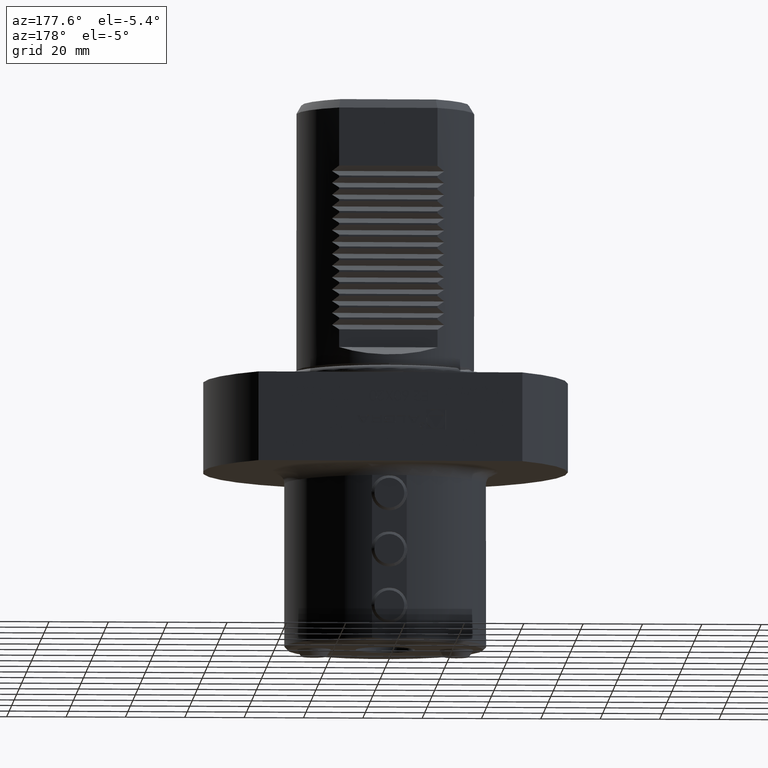
[diagram: clean part render]
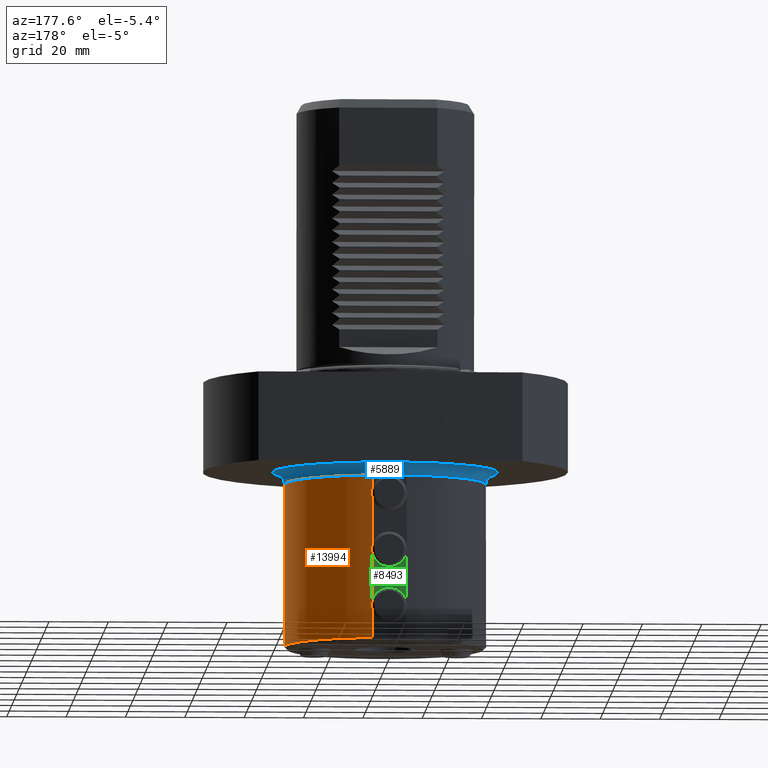
[diagram: same view with three faces highlighted in distinct colors, each labeled with its STEP entity id]
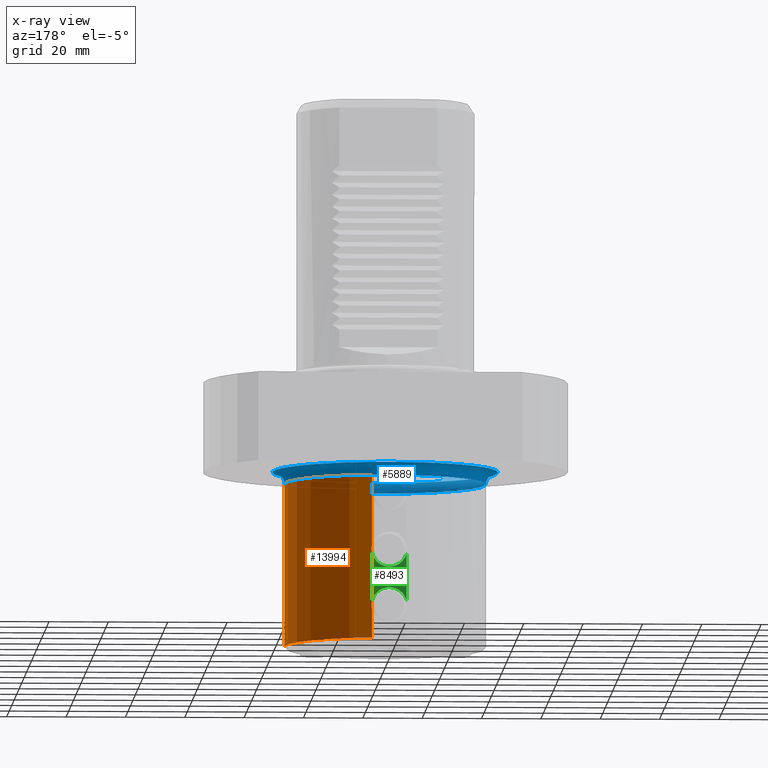
[diagram: x-ray of the same camera — body ghosted, the three highlighted faces saturated]
A machine part, auxiliary view with three faces highlighted in distinct colors.
The next image is the same camera in x-ray (body ghosted, the three faces saturated) — at least one of them is partly hidden behind the body in this view.
Their STEP definitions:

[orange] entity #13994 — the highlighted cylindrical surface (partial cylindrical patch) has radius 34 mm, axis along (0, 0, 1).
#90 = VECTOR ( 'NONE', #1124, 1000.000000000000000 ) ;
#97 = VERTEX_POINT ( 'NONE', #10227 ) ;
#319 = ORIENTED_EDGE ( 'NONE', *, *, #3936, .F. ) ;
#345 = EDGE_CURVE ( 'NONE', #11357, #4293, #9616, .T. ) ;
#447 = EDGE_CURVE ( 'NONE', #4893, #11664, #2257, .T. ) ;
#487 = AXIS2_PLACEMENT_3D ( 'NONE', #6621, #555, #14303 ) ;
#527 = CARTESIAN_POINT ( 'NONE',  ( 5.984092836332388643, 33.46926450283819321, -39.49593991136412541 ) ) ;
#555 = DIRECTION ( 'NONE',  ( -2.220446049250309876E-16, -9.860761315262649757E-32, -1.000000000000000000 ) ) ;
#738 = CIRCLE ( 'NONE', #487, 34.00000000000000000 ) ;
#804 = ORIENTED_EDGE ( 'NONE', *, *, #345, .T. ) ;
#824 = CARTESIAN_POINT ( 'NONE',  ( 5.984159321200329451, 33.46925302683403203, -40.50447366876528577 ) ) ;
#859 = ORIENTED_EDGE ( 'NONE', *, *, #4214, .F. ) ;
#1124 = DIRECTION ( 'NONE',  ( -2.220446049250309876E-16, -9.860761315262649757E-32, -1.000000000000000000 ) ) ;
#1358 = ORIENTED_EDGE ( 'NONE', *, *, #7415, .F. ) ;
#1601 = EDGE_CURVE ( 'NONE', #3600, #4757, #11387, .T. ) ;
#1760 = B_SPLINE_CURVE_WITH_KNOTS ( 'NONE', 3,
 ( #8619, #14278, #6375, #527, #4042, #12149, #824, #3971, #11117, #13224 ),
 .UNSPECIFIED., .F., .F.,
 ( 4, 2, 2, 2, 4 ),
 ( 0.007890176800251690048, 0.008644438410527741090, 0.009398700020803790398, 0.01015296163107983970, 0.01090722324135589075 ),
 .UNSPECIFIED. ) ;
#1845 = CARTESIAN_POINT ( 'NONE',  ( 5.809475019311099331, 33.50000000000000000, -90.00000000000001421 ) ) ;
#1869 = DIRECTION ( 'NONE',  ( -2.220446049250309876E-16, -9.860761315262649757E-32, -1.000000000000000000 ) ) ;
#1975 = DIRECTION ( 'NONE',  ( 2.220446049250309876E-16, 9.860761315262649757E-32, 1.000000000000000000 ) ) ;
#2257 = LINE ( 'NONE', #11428, #90 ) ;
#2298 = VERTEX_POINT ( 'NONE', #5412 ) ;
#2326 = CARTESIAN_POINT ( 'NONE',  ( 5.999960586885474179, 33.46640812751524408, -59.25256972741222938 ) ) ;
#2426 = DIRECTION ( 'NONE',  ( -2.220446049250309876E-16, -9.860761315262649757E-32, -1.000000000000000000 ) ) ;
#2920 = DIRECTION ( 'NONE',  ( 2.220446049250309876E-16, 9.860761315262649757E-32, 1.000000000000000000 ) ) ;
#3388 = EDGE_CURVE ( 'NONE', #11664, #3600, #1760, .T. ) ;
#3600 = VERTEX_POINT ( 'NONE', #10226 ) ;
#3611 = CARTESIAN_POINT ( 'NONE',  ( 6.000078606252715829, 33.46638696849687733, -58.49767464295964459 ) ) ;
#3789 = VERTEX_POINT ( 'NONE', #5853 ) ;
#3819 = CARTESIAN_POINT ( 'NONE',  ( 5.809475019311101995, 33.50000000000000000, -79.49999999999997158 ) ) ;
#3936 = EDGE_CURVE ( 'NONE', #2298, #97, #5220, .T. ) ;
#3971 = CARTESIAN_POINT ( 'NONE',  ( 5.920020685492167978, 33.48065734180099184, -41.00896558282784099 ) ) ;
#3975 = CARTESIAN_POINT ( 'NONE',  ( 6.000078606252705171, 33.46638696849687022, -77.49767464295968011 ) ) ;
#4042 = CARTESIAN_POINT ( 'NONE',  ( 5.999941852444139911, 33.46641148630608598, -39.74679394902427987 ) ) ;
#4043 = CYLINDRICAL_SURFACE ( 'NONE', #9311, 34.00000000000000000 ) ;
#4046 = CARTESIAN_POINT ( 'NONE',  ( 5.809475019311105548, 33.50000000000000000, -76.50000000000002842 ) ) ;
#4214 = EDGE_CURVE ( 'NONE', #11542, #2298, #14828, .T. ) ;
#4293 = VERTEX_POINT ( 'NONE', #14514 ) ;
#4613 = CARTESIAN_POINT ( 'NONE',  ( 5.809475019311105548, 33.50000000000000000, -76.50000000000002842 ) ) ;
#4667 = LINE ( 'NONE', #13839, #7195 ) ;
#4700 = ORIENTED_EDGE ( 'NONE', *, *, #447, .F. ) ;
#4757 = VERTEX_POINT ( 'NONE', #9459 ) ;
#4893 = VERTEX_POINT ( 'NONE', #7974 ) ;
#5220 = LINE ( 'NONE', #1845, #9868 ) ;
#5222 = CARTESIAN_POINT ( 'NONE',  ( 5.999960586885462632, 33.46640812751524408, -78.25256972741222228 ) ) ;
#5412 = CARTESIAN_POINT ( 'NONE',  ( 5.809475019311101995, 33.50000000000000000, -79.49999999999997158 ) ) ;
#5581 = VECTOR ( 'NONE', #1869, 1000.000000000000000 ) ;
#5703 = CARTESIAN_POINT ( 'NONE',  ( 5.984154340608802691, 33.46925351560634709, -59.50343631601325711 ) ) ;
#5796 = EDGE_LOOP ( 'NONE', ( #4700, #8643, #804, #12129, #319, #859, #6872, #1358, #7144, #11513 ) ) ;
#5853 = CARTESIAN_POINT ( 'NONE',  ( 5.809475019311106436, 33.50000000000000000, -60.50000000000001421 ) ) ;
#6225 = CARTESIAN_POINT ( 'NONE',  ( 5.935085517526010435, 33.47821698353605058, -76.98648736769520440 ) ) ;
#6307 = CARTESIAN_POINT ( 'NONE',  ( 5.984154340608795586, 33.46925351560635420, -78.50343631601323580 ) ) ;
#6375 = CARTESIAN_POINT ( 'NONE',  ( 5.920791655831536104, 33.48052059934292402, -38.99617241767529663 ) ) ;
#6621 = CARTESIAN_POINT ( 'NONE',  ( -1.976196983832780220E-14, -8.776077570583750730E-30, -89.00000000000000000 ) ) ;
#6726 = DIRECTION ( 'NONE',  ( -2.220446049250309876E-16, -9.860761315262649757E-32, -1.000000000000000000 ) ) ;
#6872 = ORIENTED_EDGE ( 'NONE', *, *, #8981, .F. ) ;
#7144 = ORIENTED_EDGE ( 'NONE', *, *, #1601, .F. ) ;
#7195 = VECTOR ( 'NONE', #2426, 1000.000000000000000 ) ;
#7415 = EDGE_CURVE ( 'NONE', #4757, #3789, #13250, .T. ) ;
#7426 = VECTOR ( 'NONE', #6726, 1000.000000000000000 ) ;
#7915 = AXIS2_PLACEMENT_3D ( 'NONE', #11444, #1975, #14712 ) ;
#7974 = CARTESIAN_POINT ( 'NONE',  ( 5.809475019311109989, 33.50000000000001421, -34.00000000000000000 ) ) ;
#8230 = CARTESIAN_POINT ( 'NONE',  ( 5.809475019311110877, 33.50000000000001421, -38.49999999999993605 ) ) ;
#8619 = CARTESIAN_POINT ( 'NONE',  ( 5.809475019311110877, 33.50000000000001421, -38.49999999999993605 ) ) ;
#8643 = ORIENTED_EDGE ( 'NONE', *, *, #11878, .F. ) ;
#8981 = EDGE_CURVE ( 'NONE', #3789, #11542, #4667, .T. ) ;
#9116 = CIRCLE ( 'NONE', #7915, 34.00000000000000000 ) ;
#9215 = EDGE_CURVE ( 'NONE', #97, #4293, #738, .T. ) ;
#9311 = AXIS2_PLACEMENT_3D ( 'NONE', #13225, #2920, #10260 ) ;
#9459 = CARTESIAN_POINT ( 'NONE',  ( 5.809475019311106436, 33.50000000000000000, -57.49999999999997868 ) ) ;
#9510 = CARTESIAN_POINT ( 'NONE',  ( 5.872801385134568619, 33.48901812118464250, -79.25473803978987064 ) ) ;
#9597 = CARTESIAN_POINT ( 'NONE',  ( 5.920833905181742907, 33.48051313721767741, -79.00363198621725758 ) ) ;
#9616 = LINE ( 'NONE', #14225, #5581 ) ;
#9868 = VECTOR ( 'NONE', #12152, 1000.000000000000000 ) ;
#10226 = CARTESIAN_POINT ( 'NONE',  ( 5.809475019311110877, 33.50000000000001421, -41.50000000000006395 ) ) ;
#10227 = CARTESIAN_POINT ( 'NONE',  ( 5.809475019311099331, 33.50000000000000000, -89.00000000000000000 ) ) ;
#10260 = DIRECTION ( 'NONE',  ( -1.000000000000000000, 4.440892098500630106E-16, 4.081702296416016490E-16 ) ) ;
#10296 = CARTESIAN_POINT ( 'NONE',  ( 5.920833905181743795, 33.48051313721767031, -60.00363198621731442 ) ) ;
#10447 = CARTESIAN_POINT ( 'NONE',  ( 5.872801385134569507, 33.48901812118464250, -60.25473803978991327 ) ) ;
#11117 = CARTESIAN_POINT ( 'NONE',  ( 5.872302483441622201, 33.48910463930172199, -41.25667027773815221 ) ) ;
#11357 = VERTEX_POINT ( 'NONE', #12837 ) ;
#11387 = LINE ( 'NONE', #14725, #7426 ) ;
#11428 = CARTESIAN_POINT ( 'NONE',  ( 5.809475019311099331, 33.50000000000000000, -90.00000000000001421 ) ) ;
#11444 = CARTESIAN_POINT ( 'NONE',  ( -7.549516567451069208E-15, -3.352658847189300173E-30, -34.00000000000000000 ) ) ;
#11513 = ORIENTED_EDGE ( 'NONE', *, *, #3388, .F. ) ;
#11542 = VERTEX_POINT ( 'NONE', #4613 ) ;
#11585 = CARTESIAN_POINT ( 'NONE',  ( 5.809475019311106436, 33.50000000000000000, -57.49999999999997868 ) ) ;
#11664 = VERTEX_POINT ( 'NONE', #8230 ) ;
#11878 = EDGE_CURVE ( 'NONE', #11357, #4893, #9116, .T. ) ;
#12129 = ORIENTED_EDGE ( 'NONE', *, *, #9215, .F. ) ;
#12149 = CARTESIAN_POINT ( 'NONE',  ( 6.000057829400676113, 33.46639069346019113, -40.25044276952866795 ) ) ;
#12152 = DIRECTION ( 'NONE',  ( -2.220446049250309876E-16, -9.860761315262649757E-32, -1.000000000000000000 ) ) ;
#12837 = CARTESIAN_POINT ( 'NONE',  ( 34.00000000000000000, -1.093523401780109762E-14, -34.00000000000000000 ) ) ;
#12858 = CARTESIAN_POINT ( 'NONE',  ( 5.935085517526021981, 33.47821698353605768, -57.98648736769515466 ) ) ;
#13224 = CARTESIAN_POINT ( 'NONE',  ( 5.809475019311110877, 33.50000000000001421, -41.50000000000006395 ) ) ;
#13225 = CARTESIAN_POINT ( 'NONE',  ( -1.998401444325279879E-14, -8.874685183736380008E-30, -90.00000000000000000 ) ) ;
#13250 = B_SPLINE_CURVE_WITH_KNOTS ( 'NONE', 3,
 ( #11585, #12858, #3611, #2326, #5703, #10296, #10447, #13767 ),
 .UNSPECIFIED., .F., .F.,
 ( 4, 2, 2, 4 ),
 ( 0.01728829966039963778, 0.01879646839802815231, 0.01955055276684240090, 0.02030463713565664602 ),
 .UNSPECIFIED. ) ;
#13767 = CARTESIAN_POINT ( 'NONE',  ( 5.809475019311106436, 33.50000000000000000, -60.50000000000001421 ) ) ;
#13839 = CARTESIAN_POINT ( 'NONE',  ( 5.809475019311099331, 33.50000000000000000, -90.00000000000001421 ) ) ;
#13994 = ADVANCED_FACE ( 'Defeature completata1_7', ( #14342 ), #4043, .T. ) ;
#14225 = CARTESIAN_POINT ( 'NONE',  ( 34.00000000000000000, -1.093523401780109762E-14, -90.00000000000000000 ) ) ;
#14278 = CARTESIAN_POINT ( 'NONE',  ( 5.872925308351396367, 33.48899663077171596, -38.74574191276499135 ) ) ;
#14303 = DIRECTION ( 'NONE',  ( -1.000000000000000000, 4.440892098500630106E-16, 4.081702296416016490E-16 ) ) ;
#14342 = FACE_OUTER_BOUND ( 'NONE', #5796, .T. ) ;
#14514 = CARTESIAN_POINT ( 'NONE',  ( 34.00000000000000000, -1.926283225200309874E-14, -89.00000000000000000 ) ) ;
#14712 = DIRECTION ( 'NONE',  ( -1.000000000000000000, 4.440892098500630106E-16, 2.040851148208008245E-16 ) ) ;
#14725 = CARTESIAN_POINT ( 'NONE',  ( 5.809475019311099331, 33.50000000000000000, -90.00000000000001421 ) ) ;
#14828 = B_SPLINE_CURVE_WITH_KNOTS ( 'NONE', 3,
 ( #4046, #6225, #3975, #5222, #6307, #9597, #9510, #3819 ),
 .UNSPECIFIED., .F., .F.,
 ( 4, 2, 2, 4 ),
 ( 0.01728829966039968288, 0.01879646839802812108, 0.01955055276684236273, 0.02030463713565660439 ),
 .UNSPECIFIED. ) ;

[blue] entity #5889 — the highlighted toroidal blend (fillet) surface has major radius 38 mm and minor (blend) radius 4 mm.
#13 = AXIS2_PLACEMENT_3D ( 'NONE', #1752, #12266, #9771 ) ;
#463 = AXIS2_PLACEMENT_3D ( 'NONE', #4524, #9034, #1017 ) ;
#1017 = DIRECTION ( 'NONE',  ( -1.000000000000000000, 4.440892098500630106E-16, 2.040851148208008245E-16 ) ) ;
#1451 = AXIS2_PLACEMENT_3D ( 'NONE', #8862, #13689, #5469 ) ;
#1752 = CARTESIAN_POINT ( 'NONE',  ( -6.661338147750940031E-15, -2.958228394578790066E-30, -30.00000000000000000 ) ) ;
#1975 = DIRECTION ( 'NONE',  ( 2.220446049250309876E-16, 9.860761315262649757E-32, 1.000000000000000000 ) ) ;
#2770 = EDGE_CURVE ( 'NONE', #4893, #11095, #4998, .T. ) ;
#3041 = EDGE_CURVE ( 'NONE', #5727, #5727, #12482, .T. ) ;
#3065 = DIRECTION ( 'NONE',  ( -1.691768418476429906E-16, -1.220856162842039932E-31, -1.000000000000000000 ) ) ;
#4524 = CARTESIAN_POINT ( 'NONE',  ( -7.549516567451069208E-15, -3.352658847189300173E-30, -34.00000000000000000 ) ) ;
#4893 = VERTEX_POINT ( 'NONE', #7974 ) ;
#4998 = CIRCLE ( 'NONE', #463, 34.00000000000000000 ) ;
#5024 = TOROIDAL_SURFACE ( 'NONE', #12481, 38.00000000000000000, 4.000000000000000000 ) ;
#5469 = DIRECTION ( 'NONE',  ( -1.000000000000000000, 4.440892098500630106E-16, 2.040851148208008245E-16 ) ) ;
#5727 = VERTEX_POINT ( 'NONE', #13623 ) ;
#5889 = ADVANCED_FACE ( 'Defeature completata1_56', ( #13372, #11358 ), #5024, .F. ) ;
#6464 = EDGE_LOOP ( 'NONE', ( #14254 ) ) ;
#6541 = DIRECTION ( 'NONE',  ( 1.000000000000000000, -4.440892098500630106E-16, -1.691768418476429906E-16 ) ) ;
#7409 = ORIENTED_EDGE ( 'NONE', *, *, #12093, .T. ) ;
#7915 = AXIS2_PLACEMENT_3D ( 'NONE', #11444, #1975, #14712 ) ;
#7965 = ORIENTED_EDGE ( 'NONE', *, *, #2770, .T. ) ;
#7974 = CARTESIAN_POINT ( 'NONE',  ( 5.809475019311109989, 33.50000000000001421, -34.00000000000000000 ) ) ;
#8862 = CARTESIAN_POINT ( 'NONE',  ( -7.549516567451069208E-15, -3.352658847189300173E-30, -34.00000000000000000 ) ) ;
#9034 = DIRECTION ( 'NONE',  ( 2.220446049250309876E-16, 9.860761315262649757E-32, 1.000000000000000000 ) ) ;
#9054 = ORIENTED_EDGE ( 'NONE', *, *, #11878, .T. ) ;
#9116 = CIRCLE ( 'NONE', #7915, 34.00000000000000000 ) ;
#9771 = DIRECTION ( 'NONE',  ( -1.000000000000000000, 4.440892098500630106E-16, 1.826024711554533667E-16 ) ) ;
#9911 = CARTESIAN_POINT ( 'NONE',  ( -7.549516567451069208E-15, -3.352658847189300173E-30, -34.00000000000000000 ) ) ;
#10312 = CIRCLE ( 'NONE', #1451, 34.00000000000000000 ) ;
#10604 = CARTESIAN_POINT ( 'NONE',  ( -5.809475019311130417, 33.50000000000001421, -34.00000000000000000 ) ) ;
#11095 = VERTEX_POINT ( 'NONE', #10604 ) ;
#11357 = VERTEX_POINT ( 'NONE', #12837 ) ;
#11358 = FACE_OUTER_BOUND ( 'NONE', #6464, .T. ) ;
#11444 = CARTESIAN_POINT ( 'NONE',  ( -7.549516567451069208E-15, -3.352658847189300173E-30, -34.00000000000000000 ) ) ;
#11878 = EDGE_CURVE ( 'NONE', #11357, #4893, #9116, .T. ) ;
#12093 = EDGE_CURVE ( 'NONE', #11095, #11357, #10312, .T. ) ;
#12266 = DIRECTION ( 'NONE',  ( -2.220446049250309876E-16, -9.860761315262649757E-32, -1.000000000000000000 ) ) ;
#12481 = AXIS2_PLACEMENT_3D ( 'NONE', #9911, #3065, #6541 ) ;
#12482 = CIRCLE ( 'NONE', #13, 38.00000000000000000 ) ;
#12837 = CARTESIAN_POINT ( 'NONE',  ( 34.00000000000000000, -1.093523401780109762E-14, -34.00000000000000000 ) ) ;
#13372 = FACE_OUTER_BOUND ( 'NONE', #13935, .T. ) ;
#13623 = CARTESIAN_POINT ( 'NONE',  ( -38.00000000000000711, 1.687538997430239204E-14, -29.99999999999999289 ) ) ;
#13689 = DIRECTION ( 'NONE',  ( 2.220446049250309876E-16, 9.860761315262649757E-32, 1.000000000000000000 ) ) ;
#13935 = EDGE_LOOP ( 'NONE', ( #7965, #7409, #9054 ) ) ;
#14254 = ORIENTED_EDGE ( 'NONE', *, *, #3041, .T. ) ;
#14712 = DIRECTION ( 'NONE',  ( -1.000000000000000000, 4.440892098500630106E-16, 2.040851148208008245E-16 ) ) ;

[green] entity #8493 — the highlighted planar face has unit normal (0, -1, 0).
#101 = ORIENTED_EDGE ( 'NONE', *, *, #7670, .F. ) ;
#706 = CIRCLE ( 'NONE', #4751, 6.000000000000005329 ) ;
#1393 = VERTEX_POINT ( 'NONE', #13883 ) ;
#1432 = CIRCLE ( 'NONE', #9821, 6.000000000000005329 ) ;
#1701 = LINE ( 'NONE', #6285, #2389 ) ;
#2389 = VECTOR ( 'NONE', #11168, 1000.000000000000000 ) ;
#2426 = DIRECTION ( 'NONE',  ( -2.220446049250309876E-16, -9.860761315262649757E-32, -1.000000000000000000 ) ) ;
#3266 = DIRECTION ( 'NONE',  ( 0.000000000000000000, -1.000000000000000000, 2.430452716739687956E-16 ) ) ;
#3789 = VERTEX_POINT ( 'NONE', #5853 ) ;
#4230 = DIRECTION ( 'NONE',  ( -0.000000000000000000, 1.000000000000000000, -2.430452716739687956E-16 ) ) ;
#4475 = EDGE_LOOP ( 'NONE', ( #5202, #101, #4573, #13195 ) ) ;
#4573 = ORIENTED_EDGE ( 'NONE', *, *, #6015, .T. ) ;
#4601 = DIRECTION ( 'NONE',  ( 0.000000000000000000, 0.000000000000000000, -1.000000000000000000 ) ) ;
#4613 = CARTESIAN_POINT ( 'NONE',  ( 5.809475019311105548, 33.50000000000000000, -76.50000000000002842 ) ) ;
#4667 = LINE ( 'NONE', #13839, #7195 ) ;
#4751 = AXIS2_PLACEMENT_3D ( 'NONE', #14557, #4230, #4601 ) ;
#5045 = DIRECTION ( 'NONE',  ( 8.881784197001247393E-16, 0.000000000000000000, -1.000000000000000000 ) ) ;
#5202 = ORIENTED_EDGE ( 'NONE', *, *, #8981, .T. ) ;
#5853 = CARTESIAN_POINT ( 'NONE',  ( 5.809475019311106436, 33.50000000000000000, -60.50000000000001421 ) ) ;
#6015 = EDGE_CURVE ( 'NONE', #7312, #1393, #1701, .T. ) ;
#6285 = CARTESIAN_POINT ( 'NONE',  ( -5.809475019311139299, 33.50000000000000000, -90.00000000000001421 ) ) ;
#6592 = CARTESIAN_POINT ( 'NONE',  ( -61.50000000000000711, 33.50000000000001421, -34.00000000000000000 ) ) ;
#7070 = CARTESIAN_POINT ( 'NONE',  ( -5.809475019311136634, 33.50000000000000000, -76.49999999999991473 ) ) ;
#7195 = VECTOR ( 'NONE', #2426, 1000.000000000000000 ) ;
#7312 = VERTEX_POINT ( 'NONE', #7070 ) ;
#7632 = DIRECTION ( 'NONE',  ( 0.000000000000000000, -2.430452716739687956E-16, -1.000000000000000000 ) ) ;
#7670 = EDGE_CURVE ( 'NONE', #7312, #11542, #1432, .T. ) ;
#8439 = CARTESIAN_POINT ( 'NONE',  ( -3.019806626980422003E-14, 33.50000000000000000, -78.00000000000000000 ) ) ;
#8493 = ADVANCED_FACE ( 'Defeature completata1_79', ( #10116 ), #11180, .F. ) ;
#8981 = EDGE_CURVE ( 'NONE', #3789, #11542, #4667, .T. ) ;
#9821 = AXIS2_PLACEMENT_3D ( 'NONE', #8439, #11965, #5045 ) ;
#10116 = FACE_OUTER_BOUND ( 'NONE', #4475, .T. ) ;
#11168 = DIRECTION ( 'NONE',  ( 2.220446049250309876E-16, 9.860761315262649757E-32, 1.000000000000000000 ) ) ;
#11180 = PLANE ( 'NONE',  #13178 ) ;
#11542 = VERTEX_POINT ( 'NONE', #4613 ) ;
#11965 = DIRECTION ( 'NONE',  ( -0.000000000000000000, 1.000000000000000000, -2.430452716739687956E-16 ) ) ;
#13178 = AXIS2_PLACEMENT_3D ( 'NONE', #6592, #3266, #7632 ) ;
#13195 = ORIENTED_EDGE ( 'NONE', *, *, #14243, .F. ) ;
#13839 = CARTESIAN_POINT ( 'NONE',  ( 5.809475019311099331, 33.50000000000000000, -90.00000000000001421 ) ) ;
#13883 = CARTESIAN_POINT ( 'NONE',  ( -5.809475019311132193, 33.50000000000000000, -60.50000000000002842 ) ) ;
#14243 = EDGE_CURVE ( 'NONE', #3789, #1393, #706, .T. ) ;
#14557 = CARTESIAN_POINT ( 'NONE',  ( -1.465494392505202847E-14, 33.50000000000000711, -59.00000000000000000 ) ) ;